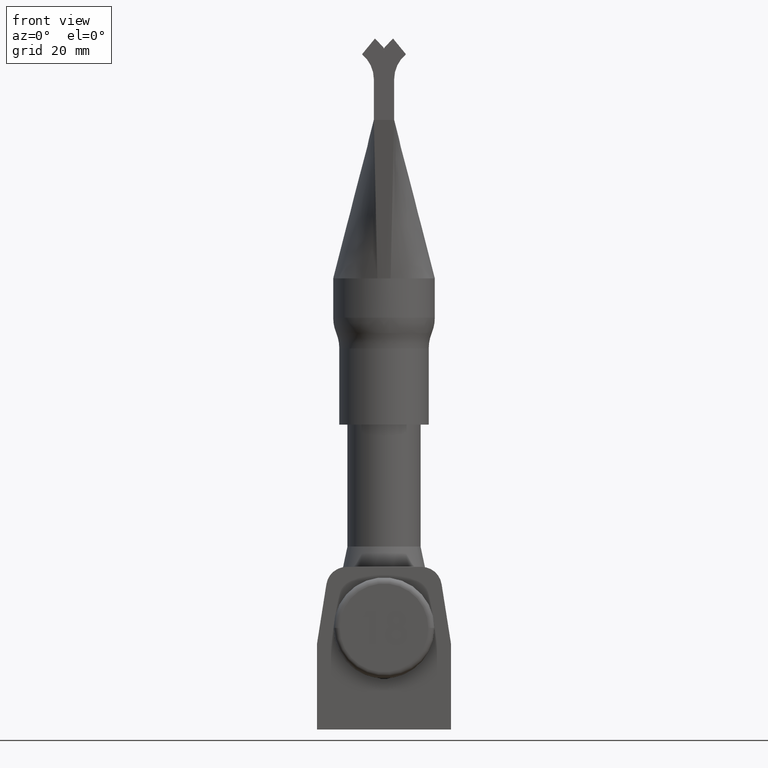
[diagram: clean part render]
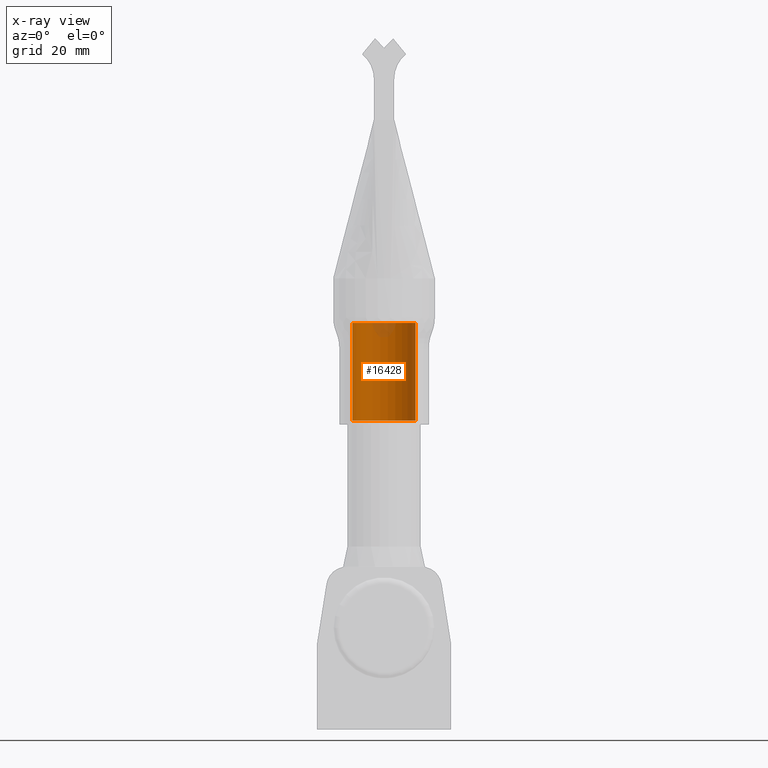
[diagram: x-ray — body ghosted, one internal face saturated and labeled with its STEP entity id]
A machine part, front view, then the same camera in x-ray: the body is ghosted and one INTERNAL B-rep face — a face not visible from any outside direction — is saturated and labeled: STEP entity #16428.
In plain terms, the highlighted cylindrical surface (edge-blend (fillet) strip) has radius 7.75 mm, axis along (-0, -0, -1).
Its self-contained STEP definition (entity closure, byte-faithful):
#708 = VERTEX_POINT ( 'NONE', #5184 ) ;
#1128 = CARTESIAN_POINT ( 'NONE',  ( 0.0000000000000000000, 0.0000000000000000000, 0.0000000000000000000 ) ) ;
#1561 = VERTEX_POINT ( 'NONE', #19190 ) ;
#1789 = ORIENTED_EDGE ( 'NONE', *, *, #13035, .T. ) ;
#2518 = VERTEX_POINT ( 'NONE', #13523 ) ;
#3004 = CARTESIAN_POINT ( 'NONE',  ( 0.0000000000000000000, 0.0000000000000000000, 25.00000000000000000 ) ) ;
#3926 = LINE ( 'NONE', #20287, #10882 ) ;
#3987 = AXIS2_PLACEMENT_3D ( 'NONE', #19636, #14527, #14727 ) ;
#4353 = CARTESIAN_POINT ( 'NONE',  ( -7.749999999999994700, 0.0000000000000000000, 1.000000000000000900 ) ) ;
#5184 = CARTESIAN_POINT ( 'NONE',  ( 7.749999999999994700, 9.491012693391981900E-016, 1.000000000000000900 ) ) ;
#5858 = DIRECTION ( 'NONE',  ( -0.0000000000000000000, -0.0000000000000000000, -1.000000000000000000 ) ) ;
#6267 = DIRECTION ( 'NONE',  ( -1.000000000000000000, 0.0000000000000000000, 0.0000000000000000000 ) ) ;
#6519 = CIRCLE ( 'NONE', #3987, 7.749999999999994700 ) ;
#6935 = EDGE_LOOP ( 'NONE', ( #17809, #9435, #1789, #12088 ) ) ;
#7244 = FACE_OUTER_BOUND ( 'NONE', #6935, .T. ) ;
#7250 = DIRECTION ( 'NONE',  ( -1.000000000000000000, 0.0000000000000000000, 0.0000000000000000000 ) ) ;
#8682 = VECTOR ( 'NONE', #9759, 1000.000000000000000 ) ;
#9435 = ORIENTED_EDGE ( 'NONE', *, *, #20626, .F. ) ;
#9648 = CIRCLE ( 'NONE', #13948, 7.749999999999992900 ) ;
#9759 = DIRECTION ( 'NONE',  ( -0.0000000000000000000, -0.0000000000000000000, -1.000000000000000000 ) ) ;
#10230 = CYLINDRICAL_SURFACE ( 'NONE', #12029, 7.749999999999994700 ) ;
#10800 = DIRECTION ( 'NONE',  ( -0.0000000000000000000, -0.0000000000000000000, -1.000000000000000000 ) ) ;
#10882 = VECTOR ( 'NONE', #10800, 1000.000000000000000 ) ;
#10933 = EDGE_CURVE ( 'NONE', #12737, #708, #6519, .T. ) ;
#12029 = AXIS2_PLACEMENT_3D ( 'NONE', #1128, #12131, #7250 ) ;
#12088 = ORIENTED_EDGE ( 'NONE', *, *, #10933, .T. ) ;
#12131 = DIRECTION ( 'NONE',  ( -0.0000000000000000000, -0.0000000000000000000, -1.000000000000000000 ) ) ;
#12737 = VERTEX_POINT ( 'NONE', #4353 ) ;
#12882 = CARTESIAN_POINT ( 'NONE',  ( -7.749999999999994700, 0.0000000000000000000, 0.0000000000000000000 ) ) ;
#13035 = EDGE_CURVE ( 'NONE', #2518, #12737, #17202, .T. ) ;
#13523 = CARTESIAN_POINT ( 'NONE',  ( -7.749999999999992900, 0.0000000000000000000, 25.00000000000000000 ) ) ;
#13948 = AXIS2_PLACEMENT_3D ( 'NONE', #3004, #5858, #6267 ) ;
#14527 = DIRECTION ( 'NONE',  ( 0.0000000000000000000, 0.0000000000000000000, -1.000000000000000000 ) ) ;
#14727 = DIRECTION ( 'NONE',  ( 1.000000000000000000, 0.0000000000000000000, 0.0000000000000000000 ) ) ;
#16428 = ADVANCED_FACE ( 'NONE', ( #7244 ), #10230, .F. ) ;
#17202 = LINE ( 'NONE', #12882, #8682 ) ;
#17809 = ORIENTED_EDGE ( 'NONE', *, *, #20216, .F. ) ;
#19190 = CARTESIAN_POINT ( 'NONE',  ( 7.749999999999992900, 9.491012693391977900E-016, 25.00000000000000000 ) ) ;
#19636 = CARTESIAN_POINT ( 'NONE',  ( 0.0000000000000000000, 0.0000000000000000000, 1.000000000000000900 ) ) ;
#20216 = EDGE_CURVE ( 'NONE', #1561, #708, #3926, .T. ) ;
#20287 = CARTESIAN_POINT ( 'NONE',  ( 7.749999999999994700, 9.491012693391981900E-016, 0.0000000000000000000 ) ) ;
#20626 = EDGE_CURVE ( 'NONE', #2518, #1561, #9648, .T. ) ;